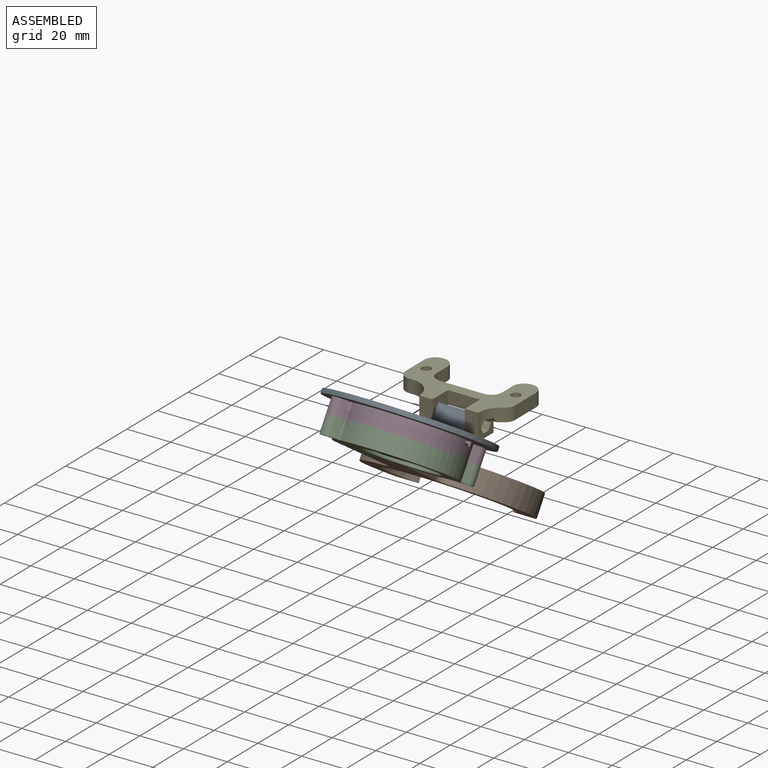
[diagram: assembled view]
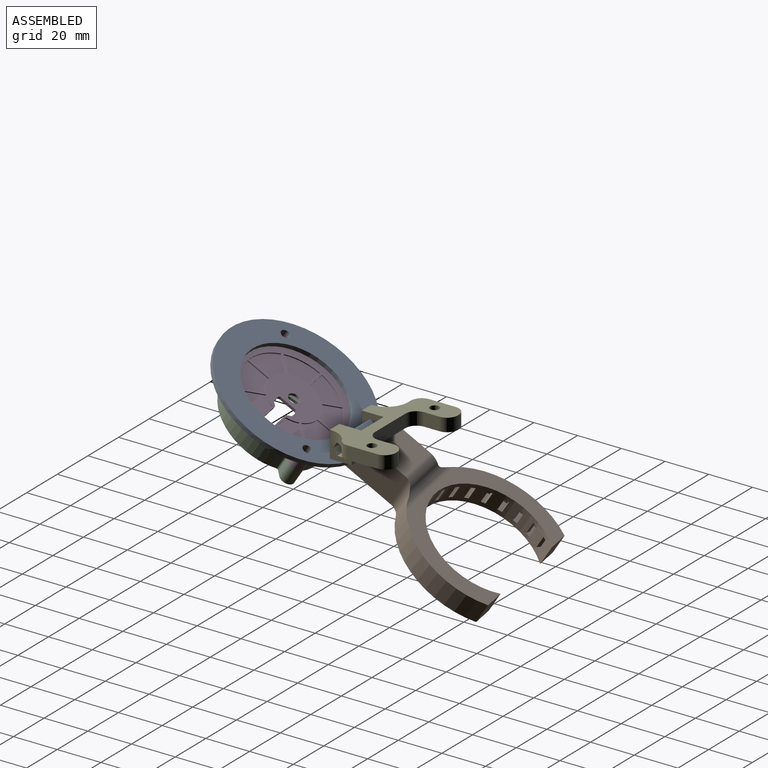
[diagram: assembled view, second angle]
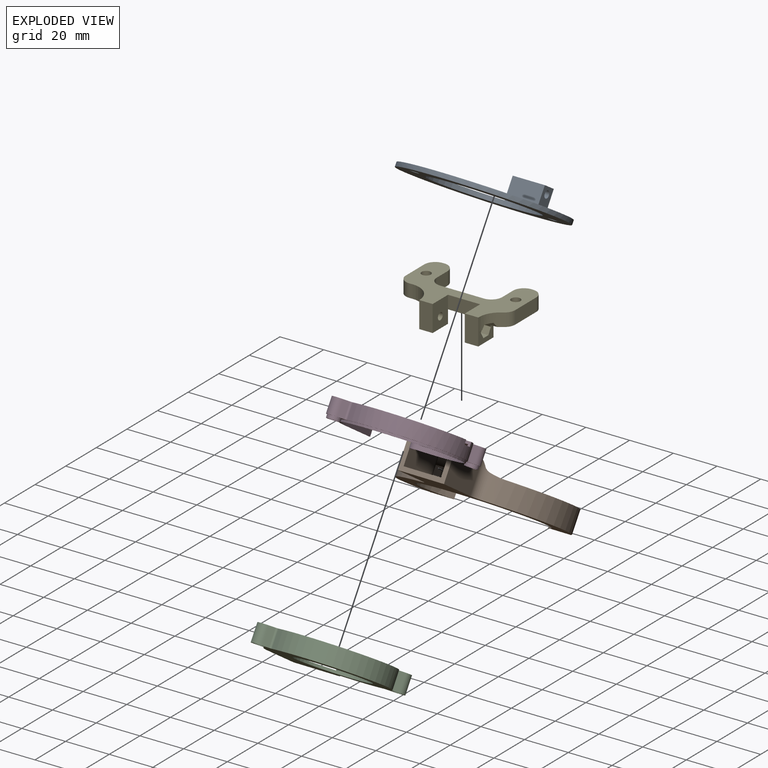
[diagram: exploded view]
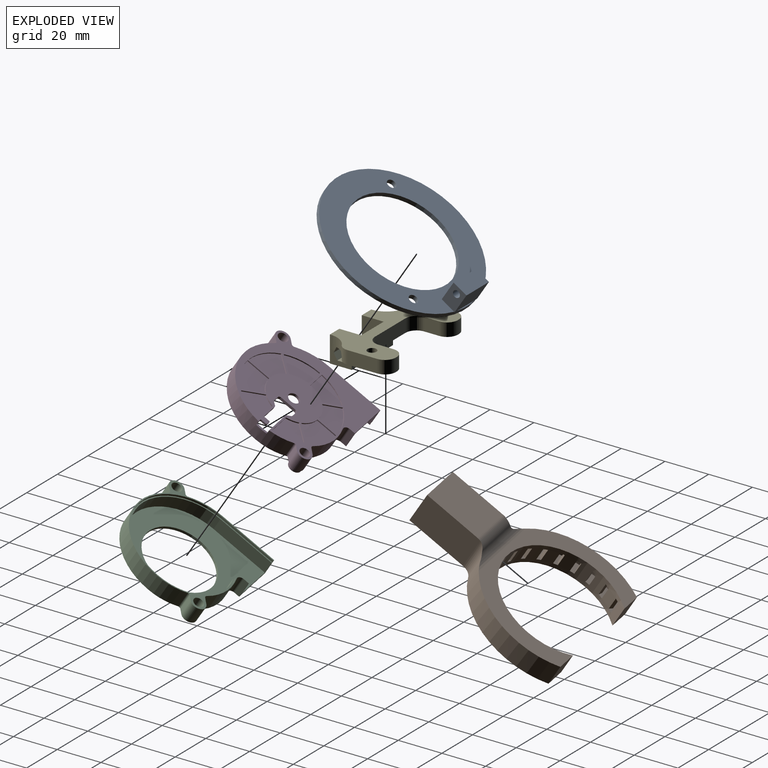
[diagram: exploded view, second angle]
ASSEMBLY  parts=5 mates=4
PART A: 15 faces, bbox 70x70.2x12 mm
  f0: plane 11.69x1.57mm, normal (0,0,1), area 3.9mm2, adj f2,f9
  f1: cylinder r=23.5mm len=47mm, axis (0,0,-1), area 295.3mm2, adj f3,f4
  f2: cylinder r=35mm len=70mm, axis (0,0,-1), area 439.8mm2, adj f0,f3,f4,f7,f8
  f3: plane 70x69.89mm, normal (0,0,1), area 1981.9mm2, adj f1,f2,f5,f6,f10,f11,f12
  f4: plane 70x70mm, normal (0,0,-1), area 2088.4mm2, adj f1,f2,f5,f6
  f5: cylinder r=2mm len=4mm, axis (0,0,-1), area 25.1mm2, adj f3,f4
  f6: cylinder r=2mm len=4mm, axis (0,0,-1), area 25.1mm2, adj f3,f4
  f7: plane 1.44x0.47mm, normal (0,0,-1), area 0.2mm2, adj f2,f9,f12
  f8: plane 1.48x0.28mm, normal (0,0,-1), area 0.2mm2, adj f2,f9,f10
  f9: plane 14.57x10mm, normal (0.13,0.99,0), area 147mm2, adj f0,f7,f8,f10,f12,f13
  f10: plane 10x6.94mm, normal (-0.99,0.13,0), area 62mm2, adj f3,f8,f9,f11,f13,f14
  f11: plane 14.57x10mm, normal (-0.13,-0.99,0), area 147mm2, adj f3,f10,f12,f13
  f12: plane 10x6.94mm, normal (0.99,-0.13,0), area 62mm2, adj f3,f7,f9,f11,f13,f14
  f13: plane 15.49x8.87mm, normal (0,0,1), area 102.9mm2, adj f9,f10,f11,f12
  f14: cylinder r=1.6mm len=14.99mm, axis (-0.99,0.13,0), area 147.8mm2, adj f10,f12
PART B: 80 faces, bbox 70x15x81.5 mm
  f0: cylinder r=27mm len=54mm, axis (0,-1,0), area 1038.2mm2, adj f19,f24,f25,f27,f32,f41,f46,f47
  f1: cylinder r=29mm len=6mm, axis (0,-1,0), area 33.6mm2, adj f32,f41,f77,f78
  f2: cylinder r=29mm len=6mm, axis (0,-1,0), area 33.6mm2, adj f32,f41,f75,f76
  f3: cylinder r=29mm len=6mm, axis (0,-1,0), area 33.6mm2, adj f32,f41,f73,f74
  f4: cylinder r=29mm len=6mm, axis (0,-1,0), area 33.6mm2, adj f32,f41,f71,f72
  f5: cylinder r=29mm len=6mm, axis (0,-1,0), area 33.6mm2, adj f32,f41,f69,f70
  f6: cylinder r=29mm len=6mm, axis (0,-1,0), area 33.6mm2, adj f32,f41,f67,f68
  f7: cylinder r=29mm len=6mm, axis (0,-1,0), area 33.6mm2, adj f32,f41,f65,f66
  f8: cylinder r=29mm len=6mm, axis (0,-1,0), area 33.6mm2, adj f32,f41,f63,f64
  f9: cylinder r=29mm len=6mm, axis (0,-1,0), area 33.6mm2, adj f32,f41,f61,f62
  f10: cylinder r=29mm len=6mm, axis (0,-1,0), area 33.6mm2, adj f32,f41,f59,f60
  f11: cylinder r=29mm len=6mm, axis (0,-1,0), area 33.6mm2, adj f32,f41,f57,f58
  f12: cylinder r=29mm len=6mm, axis (0,-1,0), area 33.6mm2, adj f32,f41,f55,f56
  f13: cylinder r=29mm len=6mm, axis (0,-1,0), area 33.6mm2, adj f32,f41,f53,f54
  f14: cylinder r=29mm len=6mm, axis (0,-1,0), area 4.6mm2, adj f32,f39,f41,f52
  f15: cylinder r=29mm len=6mm, axis (0,-1,0), area 33.6mm2, adj f32,f41,f49,f50
  f16: cylinder r=29mm len=6mm, axis (0,-1,0), area 33.6mm2, adj f32,f41,f47,f48
  f17: cylinder r=29mm len=6mm, axis (0,-1,0), area 33.6mm2, adj f32,f41,f46,f79
  f18: plane 20x15mm, normal (0,0,-1), area 124mm2, adj f19,f20,f21,f22,f32,f33,f34,f35
  f19: plane 81.54x70mm, normal (0,-1,0), area 1671.8mm2, adj f0,f18,f20,f22,f23,f24,f25,f26
  f20: plane 26.46x15mm, normal (1,0,0), area 396.8mm2, adj f18,f19,f21,f28,f31
  f21: plane 25x20mm, normal (0,1,0), area 500mm2, adj f18,f20,f22,f31
  f22: plane 26.46x15mm, normal (-1,0,0), area 396.8mm2, adj f18,f19,f21,f30,f31
  f23: cylinder r=35mm len=50.45mm, axis (0,-1,0), area 605.7mm2, adj f19,f24,f27,f28,f29
  f24: plane 10x9.89mm, normal (0,0,1), area 98.9mm2, adj f0,f19,f23,f27
  f25: plane 10x9.89mm, normal (0,0,1), area 98.9mm2, adj f0,f19,f26,f27
  f26: cylinder r=35mm len=50.45mm, axis (0,-1,0), area 605.7mm2, adj f19,f25,f27,f29,f30
  f27: plane 70x47.88mm, normal (0,1,0), area 960.6mm2, adj f0,f23,f24,f25,f26,f29
  f28: cylinder r=5mm len=14.78mm, axis (0,-1,0), area 75.1mm2, adj f19,f20,f23,f29,f31
  f29: cylinder r=5mm len=36.45mm, axis (1,0,0), area 144.6mm2, adj f23,f26,f27,f28,f30,f31
  f30: cylinder r=5mm len=14.78mm, axis (0,-1,0), area 75.1mm2, adj f19,f22,f26,f29,f31
  f31: cylinder r=5mm len=21.81mm, axis (1,0,0), area 107.3mm2, adj f20,f21,f22,f28,f29,f30
  f32: plane 79.54x66mm, normal (0,1,0), area 1094.9mm2, adj f0,f1,f2,f3,f4,f5,f6,f7
  f33: plane 26.46x11mm, normal (-1,0,0), area 290.9mm2, adj f18,f32,f34,f42,f45
  f34: plane 25x16mm, normal (0,-1,0), area 400mm2, adj f18,f33,f35,f45
  f35: plane 26.46x11mm, normal (1,0,0), area 290.9mm2, adj f18,f32,f34,f44,f45
  f36: cylinder r=33mm len=46.59mm, axis (0,-1,0), area 335.2mm2, adj f32,f37,f41,f42,f43
  f37: plane 6x4.68mm, normal (0,0,-1), area 28mm2, adj f32,f36,f38,f41
  f38: cylinder r=29mm len=6mm, axis (0,-1,0), area 4.6mm2, adj f32,f37,f41,f51
  f39: plane 6x4.68mm, normal (0,0,-1), area 28mm2, adj f14,f32,f40,f41
  f40: cylinder r=33mm len=46.59mm, axis (0,-1,0), area 335.2mm2, adj f32,f39,f41,f43,f44
  f41: plane 66x45.88mm, normal (0,-1,0), area 533.3mm2, adj f0,f1,f2,f3,f4,f5,f6,f7
  f42: cylinder r=7mm len=10.62mm, axis (0,-1,0), area 61.4mm2, adj f32,f33,f36,f43,f45
  f43: cylinder r=7mm len=28.01mm, axis (1,0,0), area 141.6mm2, adj f36,f40,f41,f42,f44,f45
  f44: cylinder r=7mm len=10.62mm, axis (0,-1,0), area 61.4mm2, adj f32,f35,f40,f43,f45
  f45: cylinder r=3mm len=16.19mm, axis (1,0,0), area 50.4mm2, adj f33,f34,f35,f42,f43,f44
  f46: plane 6x2mm, normal (0,0,1), area 12mm2, adj f0,f17,f32,f41
  f47: plane 6x2mm, normal (0,0,-1), area 12mm2, adj f0,f16,f32,f41
  f48: plane 6x1.93mm, normal (-0.26,0,0.97), area 12mm2, adj f0,f16,f32,f41
  f49: plane 6x1.93mm, normal (0.26,0,-0.97), area 12mm2, adj f0,f15,f32,f41
  f50: plane 6x1.73mm, normal (-0.5,0,0.87), area 12mm2, adj f0,f15,f32,f41
  f51: plane 6x1.73mm, normal (0.5,0,-0.87), area 12mm2, adj f0,f32,f38,f41
  f52: plane 6x1.73mm, normal (-0.5,0,-0.87), area 12mm2, adj f0,f14,f32,f41
  f53: plane 6x1.73mm, normal (0.5,0,0.87), area 12mm2, adj f0,f13,f32,f41
  f54: plane 6x1.93mm, normal (-0.26,0,-0.97), area 12mm2, adj f0,f13,f32,f41
  f55: plane 6x1.93mm, normal (0.26,0,0.97), area 12mm2, adj f0,f12,f32,f41
  f56: plane 6x2mm, normal (0,0,-1), area 12mm2, adj f0,f12,f32,f41
  f57: plane 6x2mm, normal (0,0,1), area 12mm2, adj f0,f11,f32,f41
  f58: plane 6x1.93mm, normal (0.26,0,-0.97), area 12mm2, adj f0,f11,f32,f41
  f59: plane 6x1.93mm, normal (-0.26,0,0.97), area 12mm2, adj f0,f10,f32,f41
  f60: plane 6x1.73mm, normal (0.5,0,-0.87), area 12mm2, adj f0,f10,f32,f41
  f61: plane 6x1.73mm, normal (-0.5,0,0.87), area 12mm2, adj f0,f9,f32,f41
  f62: plane 6x1.42mm, normal (0.71,0,-0.71), area 12mm2, adj f0,f9,f32,f41
  f63: plane 6x1.42mm, normal (-0.71,0,0.71), area 12mm2, adj f0,f8,f32,f41
  f64: plane 6x1.73mm, normal (0.87,0,-0.5), area 12mm2, adj f0,f8,f32,f41
  f65: plane 6x1.73mm, normal (-0.87,0,0.5), area 12mm2, adj f0,f7,f32,f41
  f66: plane 6x1.93mm, normal (0.97,0,-0.26), area 12mm2, adj f0,f7,f32,f41
  f67: plane 6x1.93mm, normal (-0.97,0,0.26), area 12mm2, adj f0,f6,f32,f41
  f68: plane 6x2mm, normal (1,0,0), area 12mm2, adj f0,f6,f32,f41
  f69: plane 6x2mm, normal (-1,0,0), area 12mm2, adj f0,f5,f32,f41
  f70: plane 6x1.93mm, normal (0.97,0,0.26), area 12mm2, adj f0,f5,f32,f41
  f71: plane 6x1.93mm, normal (-0.97,0,-0.26), area 12mm2, adj f0,f4,f32,f41
  f72: plane 6x1.73mm, normal (0.87,0,0.5), area 12mm2, adj f0,f4,f32,f41
  f73: plane 6x1.73mm, normal (-0.87,0,-0.5), area 12mm2, adj f0,f3,f32,f41
  f74: plane 6x1.42mm, normal (0.71,0,0.71), area 12mm2, adj f0,f3,f32,f41
  f75: plane 6x1.42mm, normal (-0.71,0,-0.71), area 12mm2, adj f0,f2,f32,f41
  f76: plane 6x1.73mm, normal (0.5,0,0.87), area 12mm2, adj f0,f2,f32,f41
  f77: plane 6x1.73mm, normal (-0.5,0,-0.87), area 12mm2, adj f0,f1,f32,f41
  f78: plane 6x1.93mm, normal (0.26,0,0.97), area 12mm2, adj f0,f1,f32,f41
  f79: plane 6x1.93mm, normal (-0.26,0,-0.97), area 12mm2, adj f0,f17,f32,f41
PART C: 35 faces, bbox 51.3x8x51.1 mm
  f0: cylinder r=25.15mm len=50.3mm, axis (0,-1,0), area 79mm2, adj f28,f32,f33,f34
  f1: cylinder r=2.5mm len=3.25mm, axis (0,-1,0), area 4.7mm2, adj f28,f31,f32,f34
  f2: cylinder r=2.25mm len=8mm, axis (0,1,0), area 113.1mm2, adj f28,f29
  f3: cylinder r=2.25mm len=8mm, axis (0,1,0), area 113.1mm2, adj f28,f29
  f4: cylinder r=22.07mm len=19.05mm, axis (0,1,0), area 159.4mm2, adj f20,f21,f28,f29
  f5: cylinder r=3.3mm len=8mm, axis (0,1,0), area 82.9mm2, adj f18,f19,f28,f29
  f6: cylinder r=1mm len=8mm, axis (0,1,0), area 11mm2, adj f14,f15,f28,f29
  f7: cylinder r=16mm len=32mm, axis (0,1,0), area 120.6mm2, adj f29,f30
  f8: cylinder r=24.65mm len=49.3mm, axis (0,-1,0), area 449.3mm2, adj f11,f12,f30,f34
  f9: cylinder r=3mm len=5.8mm, axis (0,-1,0), area 32.6mm2, adj f10,f11,f30,f34
  f10: plane 5.8x2.44mm, normal (-1,0,0), area 14.2mm2, adj f9,f23,f30,f34
  f11: cylinder r=21.07mm len=27.4mm, axis (0,-1,0), area 229.2mm2, adj f8,f9,f30,f34
  f12: plane 25.4x5.8mm, normal (1,0,0), area 147.3mm2, adj f8,f23,f30,f34
  f13: cylinder r=3.3mm len=8mm, axis (0,1,0), area 82.9mm2, adj f14,f27,f28,f29
  f14: plane 8x2.22mm, normal (0.66,0,-0.75), area 23.7mm2, adj f6,f13,f28,f29
  f15: cylinder r=25.65mm len=41.13mm, axis (0,1,0), area 455.4mm2, adj f6,f16,f28,f29
  f16: cylinder r=22.07mm len=12.41mm, axis (0,1,0), area 105.5mm2, adj f15,f17,f28,f29
  f17: cylinder r=1mm len=8mm, axis (0,1,0), area 11.6mm2, adj f16,f18,f28,f29
  f18: plane 8x2.04mm, normal (0.66,0,-0.75), area 21.8mm2, adj f5,f17,f28,f29
  f19: plane 8x2.44mm, normal (-0.66,0,0.75), area 26mm2, adj f5,f20,f28,f29
  f20: cylinder r=1mm len=8mm, axis (0,1,0), area 10.6mm2, adj f4,f19,f28,f29
  f21: cylinder r=2mm len=8mm, axis (0,1,0), area 30mm2, adj f4,f22,f28,f29
  f22: plane 8x2.44mm, normal (1,0,0), area 19.6mm2, adj f21,f23,f28,f29
  f23: plane 20x8mm, normal (0,0,1), area 36.6mm2, adj f10,f12,f22,f24,f28,f29,f30,f31
  f24: plane 25.4x8mm, normal (-1,0,0), area 203.2mm2, adj f23,f25,f28,f29
  f25: cylinder r=25.65mm len=14.47mm, axis (0,1,0), area 122.9mm2, adj f24,f26,f28,f29
  f26: cylinder r=1mm len=8mm, axis (0,1,0), area 11.6mm2, adj f25,f27,f28,f29
  f27: plane 8x1.98mm, normal (-0.66,0,0.75), area 21.1mm2, adj f13,f26,f28,f29
  f28: plane 51.3x51.07mm, normal (0,-1,0), area 126.8mm2, adj f0,f1,f2,f3,f4,f5,f6,f13
  f29: plane 51.3x51.07mm, normal (0,1,0), area 1370.5mm2, adj f2,f3,f4,f5,f6,f7,f13,f14
  f30: plane 50.07x49.3mm, normal (0,-1,0), area 1168mm2, adj f7,f8,f9,f10,f11,f12,f23
  f31: plane 2.44x1mm, normal (-1,0,0), area 2.4mm2, adj f1,f23,f28,f34
  f32: cylinder r=21.57mm len=28.05mm, axis (0,-1,0), area 40.5mm2, adj f0,f1,f28,f34
  f33: plane 25.4x1mm, normal (1,0,0), area 25.4mm2, adj f0,f23,f28,f34
  f34: plane 50.57x50.3mm, normal (0,-1,0), area 75.6mm2, adj f0,f1,f8,f9,f10,f11,f12,f23
PART D: 104 faces, bbox 52.9x8.5x51.4 mm
  f0: torus R=1.41mm, axis (0,-1,0), area 1.6mm2, adj f31,f35,f102,f103
  f1: cylinder r=21.88mm len=15.3mm, axis (0,-1,0), area 8.4mm2, adj f14,f53,f54,f55
  f2: cylinder r=2.82mm len=5.65mm, axis (0,-1,0), area 26.6mm2, adj f15,f41
  f3: cylinder r=2.82mm len=5.65mm, axis (0,-1,0), area 26.6mm2, adj f15,f40
  f4: cylinder r=21.57mm len=28.05mm, axis (0,1,0), area 40.5mm2, adj f15,f16,f37,f38
  f5: cylinder r=21.07mm len=27.4mm, axis (0,1,0), area 266.7mm2, adj f16,f31,f33,f34,f86,f87
  f6: cylinder r=2.5mm len=5mm, axis (0,-1,0), area 18.8mm2, adj f14,f31
  f7: cylinder r=2.25mm len=8.5mm, axis (0,-1,0), area 120.2mm2, adj f14,f40
  f8: cylinder r=2.25mm len=8.5mm, axis (0,-1,0), area 120.2mm2, adj f14,f41
  f9: cylinder r=25.65mm len=41.13mm, axis (0,-1,0), area 393.3mm2, adj f13,f14,f15,f28,f29,f87
  f10: cylinder r=1mm len=7mm, axis (0,-1,0), area 9.3mm2, adj f14,f15,f23,f24
  f11: cylinder r=2mm len=7mm, axis (0,-1,0), area 26.3mm2, adj f14,f15,f22,f23
  f12: cylinder r=3.3mm len=7mm, axis (0,-1,0), area 72.6mm2, adj f14,f15,f17,f30
  f13: plane 12.66x2mm, normal (0,0,1), area 13.2mm2, adj f9,f14,f31,f34,f87,f93,f95,f98
  f14: plane 51.17x51.07mm, normal (0,-1,0), area 1131.7mm2, adj f1,f6,f7,f8,f9,f10,f11,f12
  f15: plane 51.3x51.07mm, normal (0,1,0), area 108.5mm2, adj f2,f3,f4,f9,f10,f11,f12,f17
  f16: plane 50.57x50.3mm, normal (0,1,0), area 75.6mm2, adj f4,f5,f21,f32,f33,f34,f35,f36
  f17: plane 7x1.98mm, normal (-0.66,0,0.75), area 18.5mm2, adj f12,f14,f15,f18
  f18: cylinder r=1mm len=7mm, axis (0,-1,0), area 10.1mm2, adj f14,f15,f17,f19
  f19: cylinder r=25.65mm len=14.47mm, axis (0,-1,0), area 107.6mm2, adj f14,f15,f18,f20
  f20: plane 25.4x7mm, normal (-1,0,0), area 177.8mm2, adj f14,f15,f19,f21
  f21: plane 20x8mm, normal (0,0,1), area 31.2mm2, adj f14,f15,f16,f20,f22,f32,f35,f36
  f22: plane 7x2.44mm, normal (1,0,0), area 17.1mm2, adj f11,f14,f15,f21
  f23: cylinder r=22.07mm len=19.05mm, axis (0,-1,0), area 139.5mm2, adj f10,f11,f14,f15
  f24: plane 7x2.44mm, normal (-0.66,0,0.75), area 22.8mm2, adj f10,f14,f15,f25
  f25: cylinder r=3.3mm len=7mm, axis (0,-1,0), area 72.6mm2, adj f14,f15,f24,f26
  f26: plane 7x2.04mm, normal (0.66,0,-0.75), area 19.1mm2, adj f14,f15,f25,f27
  f27: cylinder r=1mm len=7mm, axis (0,-1,0), area 10.1mm2, adj f14,f15,f26,f28
  f28: cylinder r=22.07mm len=12.41mm, axis (0,-1,0), area 87.1mm2, adj f9,f14,f15,f27,f86,f87
  f29: cylinder r=1mm len=7mm, axis (0,-1,0), area 9.6mm2, adj f9,f14,f15,f30
  f30: plane 7x2.22mm, normal (0.66,0,-0.75), area 20.7mm2, adj f12,f14,f15,f29
  f31: plane 49.16x46.35mm, normal (0,1,0), area 1650.7mm2, adj f0,f5,f6,f13,f33,f34,f35,f81
  f32: plane 7.1x2.44mm, normal (-1,0,0), area 17.4mm2, adj f16,f21,f33,f102
  f33: cylinder r=3mm len=7.1mm, axis (0,1,0), area 38.5mm2, adj f5,f16,f31,f32,f103
  f34: cylinder r=24.65mm len=49.3mm, axis (0,1,0), area 524.7mm2, adj f5,f13,f16,f31,f35,f87
  f35: plane 25.4x7.1mm, normal (1,0,0), area 179.6mm2, adj f0,f16,f21,f31,f34,f102
  f36: plane 25.4x1mm, normal (-1,0,0), area 25.4mm2, adj f15,f16,f21,f37
  f37: cylinder r=25.15mm len=50.3mm, axis (0,1,0), area 79mm2, adj f4,f15,f16,f36
  f38: cylinder r=2.5mm len=3.25mm, axis (0,1,0), area 4.7mm2, adj f4,f15,f16,f39
  f39: plane 2.44x1mm, normal (1,0,0), area 2.4mm2, adj f15,f16,f21,f38
  f40: plane 5.65x5.65mm, normal (0,1,0), area 9.2mm2, adj f3,f7
  f41: plane 5.65x5.65mm, normal (0,1,0), area 9.2mm2, adj f2,f8
  f42: plane 6.99x6.99mm, normal (0.71,0,-0.71), area 4.9mm2, adj f14,f43,f45,f46
  f43: cylinder r=12mm len=7.62mm, axis (0,-1,0), area 4.2mm2, adj f14,f42,f44,f46
  f44: plane 10.54x0.5mm, normal (-1,0,0), area 5.3mm2, adj f14,f43,f45,f46
  f45: cylinder r=21.88mm len=14.61mm, axis (0,-1,0), area 8.2mm2, adj f14,f42,f44,f46
  f46: plane 14.61x13.7mm, normal (0,-1,0), area 127.2mm2, adj f42,f43,f44,f45
  f47: plane 7.67x7.67mm, normal (0.71,0,0.71), area 5.4mm2, adj f14,f48,f50,f51
  f48: cylinder r=12mm len=4.77mm, axis (0,-1,0), area 2.8mm2, adj f14,f47,f49,f51
  f49: plane 10.88x0.5mm, normal (0,0,-1), area 5.4mm2, adj f14,f48,f50,f51
  f50: cylinder r=21.88mm len=12.45mm, axis (0,-1,0), area 7mm2, adj f14,f47,f49,f51
  f51: plane 13.57x12.45mm, normal (0,-1,0), area 105.4mm2, adj f47,f48,f49,f50
  f52: cylinder r=12mm len=7.62mm, axis (0,-1,0), area 4.2mm2, adj f14,f53,f54,f55
  f53: plane 7.67x7.67mm, normal (-0.71,0,-0.71), area 5.4mm2, adj f1,f14,f52,f55
  f54: plane 10.57x0.5mm, normal (1,0,0), area 5.3mm2, adj f1,f14,f52,f55
  f55: plane 15.3x13.73mm, normal (0,-1,0), area 135.9mm2, adj f1,f52,f53,f54
  f56: cylinder r=12mm len=7.62mm, axis (0,-1,0), area 4.2mm2, adj f14,f57,f59,f60
  f57: plane 9.2x0.5mm, normal (1,0,0), area 4.6mm2, adj f14,f56,f58,f60
  f58: cylinder r=21.88mm len=14.58mm, axis (0,-1,0), area 7.9mm2, adj f14,f57,f59,f60
  f59: plane 6.96x6.96mm, normal (-0.71,0,0.71), area 4.9mm2, adj f14,f56,f58,f60
  f60: plane 14.58x12.36mm, normal (0,-1,0), area 115.4mm2, adj f56,f57,f58,f59
  f61: cylinder r=12mm len=4.77mm, axis (0,-1,0), area 2.8mm2, adj f14,f62,f64,f65
  f62: plane 6.99x6.99mm, normal (0.71,0,-0.71), area 4.9mm2, adj f14,f61,f63,f65
  f63: cylinder r=21.88mm len=11.76mm, axis (0,-1,0), area 6.8mm2, adj f14,f62,f64,f65
  f64: plane 10.66x0.5mm, normal (0,0,1), area 5.3mm2, adj f14,f61,f63,f65
  f65: plane 13.36x11.76mm, normal (0,-1,0), area 97mm2, adj f61,f62,f63,f64
  f66: cylinder r=12mm len=7.62mm, axis (0,-1,0), area 4.2mm2, adj f14,f67,f69,f70
  f67: plane 9.17x0.5mm, normal (0,0,1), area 4.6mm2, adj f14,f66,f68,f70
  f68: cylinder r=21.88mm len=13.93mm, axis (0,-1,0), area 7.7mm2, adj f14,f67,f69,f70
  f69: plane 6.3x6.3mm, normal (-0.71,0,-0.71), area 4.5mm2, adj f14,f66,f68,f70
  f70: plane 13.93x12.33mm, normal (0,-1,0), area 107.6mm2, adj f66,f67,f68,f69
  f71: plane 9.17x0.5mm, normal (-1,0,0), area 4.6mm2, adj f14,f72,f74,f75
  f72: cylinder r=12mm len=7.62mm, axis (0,-1,0), area 4.2mm2, adj f14,f71,f73,f75
  f73: plane 6.3x6.3mm, normal (0.71,0,0.71), area 4.5mm2, adj f14,f72,f74,f75
  f74: cylinder r=21.88mm len=13.93mm, axis (0,-1,0), area 7.7mm2, adj f14,f71,f73,f75
  f75: plane 13.93x12.33mm, normal (0,-1,0), area 107.6mm2, adj f71,f72,f73,f74
  f76: cylinder r=12mm len=7.62mm, axis (0,-1,0), area 4.2mm2, adj f14,f77,f79,f80
  f77: plane 6.96x6.96mm, normal (-0.71,0,0.71), area 4.9mm2, adj f14,f76,f78,f80
  f78: cylinder r=21.88mm len=14.58mm, axis (0,-1,0), area 7.9mm2, adj f14,f77,f79,f80
  f79: plane 9.2x0.5mm, normal (0,0,-1), area 4.6mm2, adj f14,f76,f78,f80
  f80: plane 14.58x12.36mm, normal (0,-1,0), area 115.4mm2, adj f76,f77,f78,f79
  f81: plane 1.31x1.31mm, normal (-0.71,0,0.71), area 2.2mm2, adj f14,f31,f92,f93
  f82: plane 2.79x1.2mm, normal (0,0,1), area 3.3mm2, adj f14,f31,f91,f92
  f83: plane 7x1.2mm, normal (1,0,0), area 8.4mm2, adj f14,f31,f88,f91
  f84: plane 2.79x1.2mm, normal (0,0,-1), area 3.3mm2, adj f14,f31,f88,f90
  f85: plane 1.31x1.31mm, normal (-0.71,0,-0.71), area 2.2mm2, adj f14,f31,f89,f90
  f86: plane 12.63x2mm, normal (0,0,-1), area 16mm2, adj f5,f14,f28,f31,f87,f89
  f87: plane 5.2x1.16mm, normal (0,-1,0), area 5.2mm2, adj f5,f9,f13,f28,f34,f86
  f88: cylinder r=1mm len=1.2mm, axis (0,1,0), area 1.9mm2, adj f14,f31,f83,f84
  f89: cylinder r=1mm len=1.2mm, axis (0,-1,0), area 0.9mm2, adj f14,f31,f85,f86
  f90: cylinder r=1mm len=1.2mm, axis (0,1,0), area 0.9mm2, adj f14,f31,f84,f85
  f91: cylinder r=1mm len=1.2mm, axis (0,1,0), area 1.9mm2, adj f14,f31,f82,f83
  f92: cylinder r=1mm len=1.2mm, axis (0,1,0), area 0.9mm2, adj f14,f31,f81,f82
  f93: cylinder r=1mm len=1.2mm, axis (0,-1,0), area 0.9mm2, adj f13,f14,f31,f81
  f94: plane 2x0.8mm, normal (1,0,0), area 1.6mm2, adj f14,f95,f100,f101
  f95: plane 3.5x3mm, normal (0,1,0), area 7.5mm2, adj f13,f94,f96,f97,f98,f99,f100,f101
  f96: plane 2x0.8mm, normal (-1,0,0), area 1.6mm2, adj f14,f95,f98,f99
  f97: plane 1.5x0.8mm, normal (0,0,1), area 1.2mm2, adj f14,f95,f99,f100
  f98: cylinder r=0.5mm len=0.8mm, axis (0,1,0), area 0.6mm2, adj f13,f14,f95,f96
  f99: cylinder r=0.5mm len=0.8mm, axis (0,1,0), area 0.6mm2, adj f14,f95,f96,f97
  f100: cylinder r=0.5mm len=0.8mm, axis (0,-1,0), area 0.6mm2, adj f14,f94,f95,f97
  f101: cylinder r=0.5mm len=0.8mm, axis (0,-1,0), area 0.6mm2, adj f13,f14,f94,f95
  f102: plane 22.44x18mm, normal (0,1,0), area 150.3mm2, adj f0,f21,f32,f35,f103
  f103: torus R=22.35mm, axis (0,1,0), area 37.3mm2, adj f0,f31,f33,f102
PART E: 46 faces, bbox 51.3x32.1x12.1 mm
  f0: plane 6x0.6mm, normal (0,1,0), area 3.6mm2, adj f1,f11,f40,f43
  f1: plane 51.2x24.44mm, normal (0,0,-1), area 595.8mm2, adj f0,f3,f4,f8,f12,f13,f14,f15
  f2: plane 1.99x0.2mm, normal (0,0,-1), area 0.1mm2, adj f3,f4,f31
  f3: plane 12x10mm, normal (1,0,0), area 41.7mm2, adj f1,f2,f4,f10,f11,f18,f19,f28
  f4: cylinder r=10mm len=8.7mm, axis (0,0,1), area 53.9mm2, adj f1,f2,f3,f11,f31,f32,f33,f45
  f5: cylinder r=1.6mm len=3.2mm, axis (-1,0,0), area 16.6mm2, adj f24,f34
  f6: cylinder r=1.6mm len=3.2mm, axis (-1,0,0), area 16.6mm2, adj f23,f26
  f7: plane 2.44x0.3mm, normal (0,0,-1), area 0.2mm2, adj f21,f25,f27
  f8: plane 6.15x6mm, normal (0,1,0), area 36.9mm2, adj f1,f9,f21,f23
  f9: plane 10x6.15mm, normal (0,0,-1), area 61.5mm2, adj f8,f20,f21,f23
  f10: plane 12x6.15mm, normal (0,-1,0), area 73.8mm2, adj f3,f11,f19,f24
  f11: plane 51.2x32mm, normal (0,0,1), area 734.3mm2, adj f0,f3,f4,f10,f12,f13,f14,f15
  f12: plane 6x1.6mm, normal (0,-1,0), area 9.6mm2, adj f1,f11,f25,f44
  f13: plane 13.66x6mm, normal (1,0,0), area 82mm2, adj f1,f11,f42,f45
  f14: plane 6x0.6mm, normal (0,1,0), area 3.6mm2, adj f1,f11,f39,f42
  f15: plane 12x6mm, normal (-1,0,0), area 72mm2, adj f1,f11,f43,f44
  f16: cylinder r=2.1mm len=6mm, axis (0,0,1), area 79.2mm2, adj f1,f11
  f17: cylinder r=2.1mm len=6mm, axis (0,0,1), area 79.2mm2, adj f1,f11
  f18: plane 6.15x6mm, normal (0,1,0), area 36.9mm2, adj f1,f3,f19,f24
  f19: plane 10x6.15mm, normal (0,0,-1), area 61.5mm2, adj f3,f10,f18,f24
  f20: plane 12x6.15mm, normal (0,-1,0), area 73.8mm2, adj f9,f11,f21,f23,f25
  f21: plane 10x6mm, normal (-1,0,0), area 42.7mm2, adj f1,f7,f8,f9,f20,f27
  f22: plane 14.7x6mm, normal (0,-1,0), area 88.2mm2, adj f1,f11,f23,f24
  f23: plane 12x10mm, normal (1,0,0), area 112mm2, adj f6,f8,f9,f11,f20,f22
  f24: plane 12x10mm, normal (-1,0,0), area 112mm2, adj f5,f10,f11,f18,f19,f22
  f25: cylinder r=10mm len=10mm, axis (0,0,-1), area 86.6mm2, adj f1,f7,f11,f12,f20,f27
  f26: plane 5.5x5.5mm, normal (-1,0,0), area 15.7mm2, adj f6,f27
  f27: cylinder r=2.75mm len=7.96mm, axis (-1,0,0), area 88mm2, adj f1,f7,f21,f25,f26
  f28: plane 4.5x2.85mm, normal (0,0.87,0.5), area 14.8mm2, adj f3,f29,f31,f34
  f29: plane 4.5x3.29mm, normal (0,0,1), area 14.8mm2, adj f3,f28,f30,f34
  f30: plane 4.5x2.85mm, normal (0,-0.87,0.5), area 14.8mm2, adj f3,f29,f32,f34
  f31: plane 4.99x2.86mm, normal (0,0.87,-0.5), area 15.5mm2, adj f2,f3,f4,f28,f33,f34
  f32: plane 7.86x2.92mm, normal (0,-0.87,-0.5), area 20.7mm2, adj f1,f3,f4,f30,f33,f34
  f33: plane 6.78x3.29mm, normal (0,0,-1), area 18.9mm2, adj f4,f31,f32,f34
  f34: plane 6.58x5.7mm, normal (1,0,0), area 20.1mm2, adj f5,f28,f29,f30,f31,f32,f33
  f35: plane 7x6mm, normal (1,0,0), area 42mm2, adj f1,f11,f40,f41
  f36: plane 7x6mm, normal (-1,0,0), area 42mm2, adj f1,f11,f38,f39
  f37: plane 20x6mm, normal (0,1,0), area 120mm2, adj f1,f11,f38,f41
  f38: cylinder r=5mm len=6mm, axis (0,0,1), area 47.1mm2, adj f1,f11,f36,f37
  f39: cylinder r=5mm len=6mm, axis (0,0,-1), area 47.1mm2, adj f1,f11,f14,f36
  f40: cylinder r=5mm len=6mm, axis (0,0,1), area 47.1mm2, adj f0,f1,f11,f35
  f41: cylinder r=5mm len=6mm, axis (0,0,-1), area 47.1mm2, adj f1,f11,f35,f37
  f42: cylinder r=5mm len=6mm, axis (0,0,1), area 47.1mm2, adj f1,f11,f13,f14
  f43: cylinder r=5mm len=6mm, axis (0,0,-1), area 47.1mm2, adj f0,f1,f11,f15
  f44: cylinder r=5mm len=6mm, axis (0,0,1), area 47.1mm2, adj f1,f11,f12,f15
  f45: cylinder r=5mm len=6mm, axis (0,0,1), area 31.6mm2, adj f1,f4,f11,f13
PLACE A rot(axis=(-0.97,0.06,0.22),33.8deg) t=(-16,-46.91,2.31)mm
PLACE B rot(axis=(0.03,-0.88,-0.48),173.4deg) t=(-35.32,-30.78,-17.08)mm
PLACE C rot(axis=(-1,-0.04,0.07),123.1deg) t=(-14.64,-54.07,-10.93)mm
PLACE D rot(axis=(-1,-0.04,0.07),123.1deg) t=(-14.64,-45.91,1.66)mm
PLACE E t=(-20.5,0,-6)mm
MATE fastened C.f2 <-> D.f3  axis (0,-0.54,-0.84) through (2.82,-32.54,-15.34)mm
MATE fastened D.f2 <-> A.f6  axis (0,0.54,0.84) through (-34.82,-65.08,14.08)mm
MATE fastened B.f18 <-> D.f21  axis (0.13,-0.83,0.54) through (-45.24,-27.81,-10.07)mm
MATE revolute A.f14 <-> E.f27  axis (-1,0,0) through (-23.35,-16,-7)mm
